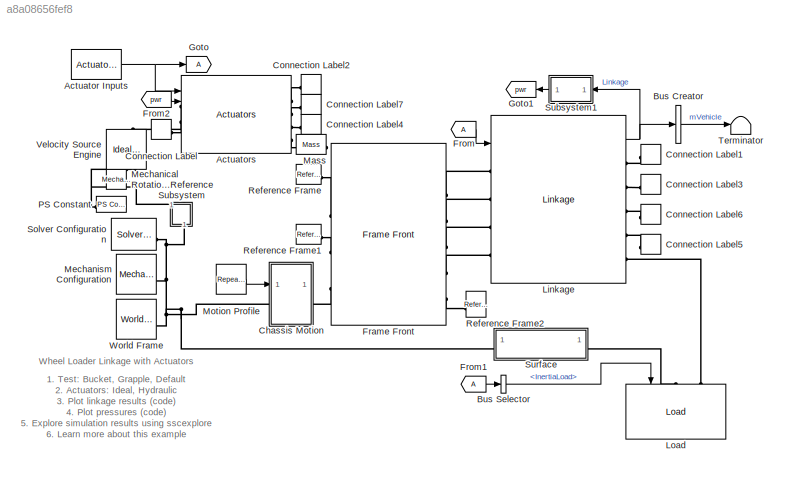
MODEL slx_a8a08656fef8
KIND model
CONFIG AbsTol = 1e-3
CONFIG EnableMultiTasking = on
CONFIG PostLoadFcn = set_param([bdroot '/Actuators'],'LabelModeActiveChoice','Ideal')\nset_param([bdroot '/Linkage'],'popup_actuator_model','Position')\n\nset_param([bdroot '/Actuator Inputs'],'popup_impl','Bucket')\nset_param([bdroot '/Linkage'],'popup_impl','Bucket')\nset_param([bdroot '/Load'],'LabelModeActiveChoice','Inertia')\nset_param([bdroot '/Actuators'],'popup_impl','Bucket')\ntestInput.Active = testInput.BucketYCy...<+4ch>
CONFIG SolverName = ode23t
CONFIG StartFcn = tic
CONFIG StopFcn = Elapsed_Sim_Time = toc;\ndisp(['Elapsed Sim Time = ' num2str(Elapsed_Sim_Time)]);
CONFIG StopTime = stopTime
BLOCK [Reference] Actuator Inputs  REF=sm_wheel_loader_lib/Actuator Inputs  (lib defined in slx_2f13f0afc9e9, slx_78fdec152d5c)
  AttributesFormatString = %<popup_impl>
  SourceBlock = sm_wheel_loader_lib/Actuator Inputs
BLOCK [Reference] Actuators  REF=sm_wheel_loader_lib/Wheel Loader Vehicle/Actuators  (lib defined in slx_2f13f0afc9e9, slx_78fdec152d5c)
  AttributesFormatString = %<LabelModeActiveChoice>, %<popup_impl>
  SourceBlock = sm_wheel_loader_lib/Wheel Loader Vehicle/Actuators
BLOCK [BusCreator] Bus Creator
  DisplayOption = bar
  InheritFromInputs = on
  Inputs = 1
BLOCK [BusSelector] Bus Selector
  OutputSignals = Actuator.InertiaLoad
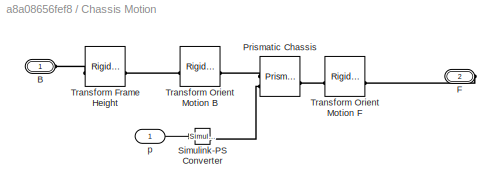
BLOCK [SubSystem] Chassis Motion
BLOCK [PMIOPort] Chassis Motion/B
  Side = Left
BLOCK [PMIOPort] Chassis Motion/F
  Port = 2
  Side = Right
BLOCK [Reference] Chassis Motion/Prismatic Chassis  REF=sm_lib/Joints/Prismatic
Joint
  SourceBlock = sm_lib/Joints/Prismatic\nJoint
  SourceType = Prismatic\nJoint
BLOCK [Reference] Chassis Motion/Simulink-PS Converter  REF=nesl_utility/Simulink-PS
Converter
  SourceBlock = nesl_utility/Simulink-PS\nConverter
  SourceType = Simulink-PS\nConverter
BLOCK [Reference] Chassis Motion/Transform Frame Height  REF=sm_lib/Frames and
Transforms/Rigid
Transform
  SourceBlock = sm_lib/Frames and\nTransforms/Rigid\nTransform
  SourceType = Rigid\nTransform
BLOCK [Reference] Chassis Motion/Transform Orient Motion B  REF=sm_lib/Frames and
Transforms/Rigid
Transform
  SourceBlock = sm_lib/Frames and\nTransforms/Rigid\nTransform
  SourceType = Rigid\nTransform
BLOCK [Reference] Chassis Motion/Transform Orient Motion F  REF=sm_lib/Frames and
Transforms/Rigid
Transform
  SourceBlock = sm_lib/Frames and\nTransforms/Rigid\nTransform
  SourceType = Rigid\nTransform
BLOCK [Inport] Chassis Motion/p
BLOCK [ConnectionLabel] Connection Label
  Label = Tilt
BLOCK [ConnectionLabel] Connection Label1
  Label = Tilt
BLOCK [ConnectionLabel] Connection Label2
  Label = RLiftL
BLOCK [ConnectionLabel] Connection Label3
  Label = RLiftL
BLOCK [ConnectionLabel] Connection Label4
  Label = Impl
BLOCK [ConnectionLabel] Connection Label5
  Label = Impl
BLOCK [ConnectionLabel] Connection Label6
  Label = RLiftR
BLOCK [ConnectionLabel] Connection Label7
  Label = RLiftR
BLOCK [Reference] Frame Front   REF=sm_wheel_loader_lib/Wheel Loader Vehicle/Frame Front  (lib defined in slx_2f13f0afc9e9, slx_78fdec152d5c)
  SourceBlock = sm_wheel_loader_lib/Wheel Loader Vehicle/Frame Front
BLOCK [From] From
BLOCK [From] From1
BLOCK [From] From2
  GotoTag = pwr
BLOCK [Goto] Goto
BLOCK [Goto] Goto1
  GotoTag = pwr
BLOCK [Reference] Linkage  REF=sm_wheel_loader_lib/Wheel Loader Vehicle/Linkage  (lib defined in slx_2f13f0afc9e9, slx_78fdec152d5c)
  AttributesFormatString = %<popup_impl>, %<popup_actuator_model>
  SourceBlock = sm_wheel_loader_lib/Wheel Loader Vehicle/Linkage
BLOCK [Reference] Load  REF=sm_wheel_loader_lib/Wheel Loader Vehicle/Load  (lib defined in slx_2f13f0afc9e9, slx_78fdec152d5c)
  AttributesFormatString = %<LabelModeActiveChoice>
  NameLocation = left
  SourceBlock = sm_wheel_loader_lib/Wheel Loader Vehicle/Load
BLOCK [Reference] Mass  REF=fl_lib/Mechanical/Translational
Elements/Mass
  NameLocation = top
  SourceBlock = fl_lib/Mechanical/Translational\nElements/Mass
  SourceType = Mass
BLOCK [Reference] Mechanical Rotational Reference  REF=fl_lib/Mechanical/Rotational Elements/Mechanical
Rotational Reference
  SourceBlock = fl_lib/Mechanical/Rotational Elements/Mechanical\nRotational Reference
  SourceType = Mechanical\nRotational Reference
BLOCK [Reference] Mechanism Configuration  REF=sm_lib/Utilities/Mechanism
Configuration
  SourceBlock = sm_lib/Utilities/Mechanism\nConfiguration
  SourceType = Mechanism\nConfiguration
BLOCK [Reference] Motion Profile  REF=simulink/Sources/Repeating
Sequence
  NameLocation = top
  SourceBlock = simulink/Sources/Repeating\nSequence
  SourceType = Repeating table
BLOCK [Reference] PS Constant  REF=fl_lib/Physical Signals/Sources/PS Constant
  SourceBlock = fl_lib/Physical Signals/Sources/PS Constant
  SourceType = PS Constant
BLOCK [Reference] Reference Frame  REF=sm_lib/Frames and
Transforms/Reference
Frame
  SourceBlock = sm_lib/Frames and\nTransforms/Reference\nFrame
  SourceType = Reference\nFrame
BLOCK [Reference] Reference Frame1  REF=sm_lib/Frames and
Transforms/Reference
Frame
  SourceBlock = sm_lib/Frames and\nTransforms/Reference\nFrame
  SourceType = Reference\nFrame
BLOCK [Reference] Reference Frame2  REF=sm_lib/Frames and
Transforms/Reference
Frame
  NameLocation = top
  SourceBlock = sm_lib/Frames and\nTransforms/Reference\nFrame
  SourceType = Reference\nFrame
BLOCK [Reference] Solver Configuration  REF=nesl_utility/Solver
Configuration
  SourceBlock = nesl_utility/Solver\nConfiguration
  SourceType = Solver\nConfiguration
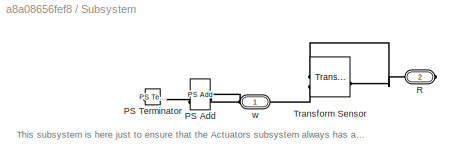
BLOCK [SubSystem] Subsystem
  NameLocation = left
BLOCK [Reference] Subsystem/PS Add  REF=fl_lib/Physical Signals/Functions/PS Add
  SourceBlock = fl_lib/Physical Signals/Functions/PS Add
  SourceType = PS Add
BLOCK [Reference] Subsystem/PS Terminator  REF=fl_lib/Physical Signals/Sinks/PS Terminator
  SourceBlock = fl_lib/Physical Signals/Sinks/PS Terminator
  SourceType = PS Terminator
BLOCK [PMIOPort] Subsystem/R
  Port = 2
  Side = Right
BLOCK [Reference] Subsystem/Transform Sensor  REF=sm_lib/Frames and
Transforms/Transform
Sensor
  NameLocation = top
  SourceBlock = sm_lib/Frames and\nTransforms/Transform\nSensor
  SourceType = Transform\nSensor
BLOCK [PMIOPort] Subsystem/w
  Side = Left
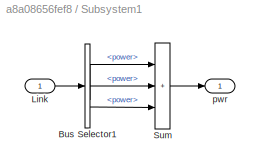
BLOCK [SubSystem] Subsystem1
BLOCK [BusSelector] Subsystem1/Bus Selector1
  NameLocation = top
  OutputSignals = Lift.power,Tilt.power,Impl.power
BLOCK [Inport] Subsystem1/Link
BLOCK [Sum] Subsystem1/Sum
  IconShape = rectangular
  Inputs = +++
BLOCK [Outport] Subsystem1/pwr
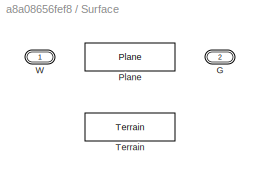
BLOCK [SubSystem] Surface
  LabelModeActiveChoice = Plane
  Variant = on
  VariantControl = Choice
  VariantControlMode = label
BLOCK [PMIOPort] Surface/G
  Port = 2
  Side = Right
BLOCK [Reference] Surface/Plane  REF=wheel_loader_contact_lib/Plane  (lib defined in slx_c9c847b5a653, slx_ee41a34c1fd8)
  SourceBlock = wheel_loader_contact_lib/Plane
BLOCK [Reference] Surface/Terrain  REF=wheel_loader_contact_lib/Terrain  (lib defined in slx_c9c847b5a653, slx_ee41a34c1fd8)
  SourceBlock = wheel_loader_contact_lib/Terrain
BLOCK [PMIOPort] Surface/W
  Side = Left
BLOCK [Terminator] Terminator
BLOCK [Reference] Velocity Source Engine  REF=fl_lib/Mechanical/Mechanical Sources/Ideal Angular
Velocity Source
  NameLocation = left
  SourceBlock = fl_lib/Mechanical/Mechanical Sources/Ideal Angular\nVelocity Source
  SourceType = Ideal Angular\nVelocity Source
BLOCK [Reference] World Frame  REF=sm_lib/Frames and
Transforms/World Frame
  SourceBlock = sm_lib/Frames and\nTransforms/World Frame
  SourceType = World Frame
ANNOTATION (root): 1. Test: Bucket , Grapple , Default 2. Actuators: Ideal , Hydraulic 3. Plot linkage results ( code ) 4. Plot pressures ( code ) 5. Explore simulation results using sscexplore 6. Learn more about this example
ANNOTATION (root): Wheel Loader Linkage with Actuators
ANNOTATION Subsystem: This subsystem is here just to ensure that the Actuators subsystem always has a connection to the Solver Configuration Block.
NET Actuator Inputs:1 -> Actuators:1, Goto:1
LINE Bus Creator:1 -> Terminator:1
LINE Bus Selector:1 -> Load:1
LINE Chassis Motion/p:1 -> Chassis Motion/Simulink-PS Converter:1
LINE From1:1 -> Bus Selector:1
LINE From2:1 -> Actuators:2
LINE From:1 -> Linkage:1
NET Linkage:1 -> Bus Creator:1, Subsystem1:1
LINE Motion Profile:1 -> Chassis Motion:1
LINE Subsystem1/Bus Selector1:1 -> Subsystem1/Sum:1
LINE Subsystem1/Bus Selector1:2 -> Subsystem1/Sum:2
LINE Subsystem1/Bus Selector1:3 -> Subsystem1/Sum:3
LINE Subsystem1/Link:1 -> Subsystem1/Bus Selector1:1
LINE Subsystem1/Sum:1 -> Subsystem1/pwr:1
LINE Subsystem1:1 -> Goto1:1
PLINE Actuators:LConn1 -- Velocity Source Engine:LConn1
PLINE Actuators:LConn2 -- Connection Label:LConn1
PLINE Actuators:RConn1 -- Connection Label2:LConn1
PLINE Actuators:RConn2 -- Connection Label7:LConn1
PLINE Actuators:RConn3 -- Connection Label4:LConn1
PLINE Actuators:RConn4 -- Mass:LConn1
PLINE Chassis Motion/B:RConn1 -- Chassis Motion/Transform Frame Height:LConn1
PLINE Chassis Motion/F:RConn1 -- Chassis Motion/Transform Orient Motion F:LConn1
PLINE Chassis Motion/Prismatic Chassis:LConn1 -- Chassis Motion/Transform Orient Motion B:RConn1
PLINE Chassis Motion/Prismatic Chassis:LConn2 -- Chassis Motion/Simulink-PS Converter:RConn1
PLINE Chassis Motion/Prismatic Chassis:RConn1 -- Chassis Motion/Transform Orient Motion F:RConn1
PLINE Chassis Motion/Transform Frame Height:RConn1 -- Chassis Motion/Transform Orient Motion B:LConn1
PNET net1: Chassis Motion:LConn1 -- Mechanism Configuration:RConn1 -- Solver Configuration:RConn1 -- Subsystem:RConn1 -- Surface:LConn1 -- World Frame:RConn1
PLINE Chassis Motion:RConn1 -- Frame Front :LConn3
PLINE Connection Label1:LConn1 -- Linkage:RConn1
PLINE Connection Label3:LConn1 -- Linkage:RConn2
PLINE Connection Label5:LConn1 -- Linkage:RConn4
PLINE Connection Label6:LConn1 -- Linkage:RConn3
PLINE Frame Front :LConn1 -- Reference Frame:RConn1
PLINE Frame Front :LConn2 -- Reference Frame1:RConn1
PLINE Frame Front :RConn1 -- Linkage:LConn1
PLINE Frame Front :RConn2 -- Linkage:LConn2
PLINE Frame Front :RConn3 -- Linkage:LConn3
PLINE Frame Front :RConn4 -- Linkage:LConn4
PLINE Frame Front :RConn5 -- Reference Frame2:RConn1
PLINE Linkage:RConn5 -- Load:LConn2
PLINE Load:LConn1 -- Surface:RConn1
PLINE Mechanical Rotational Reference:LConn1 -- Velocity Source Engine:RConn2
PNET net2: PS Constant:RConn1 -- Subsystem:LConn1 -- Velocity Source Engine:RConn1
PLINE Subsystem/PS Add:LConn1 -- Subsystem/w:RConn1
PLINE Subsystem/PS Add:LConn2 -- Subsystem/Transform Sensor:RConn2
PLINE Subsystem/PS Add:RConn1 -- Subsystem/PS Terminator:LConn1
PNET net3: Subsystem/R:RConn1 -- Subsystem/Transform Sensor:LConn1 -- Subsystem/Transform Sensor:RConn1
note: NET lines group one-source signal fan-out (src -> all destinations, sorted); 1:1 wires keep LINE; PNET lines group multi-terminal physical nets as a canonical sorted terminal list (undirected conserving connections); 2-terminal nets keep the pairwise PLINE form
